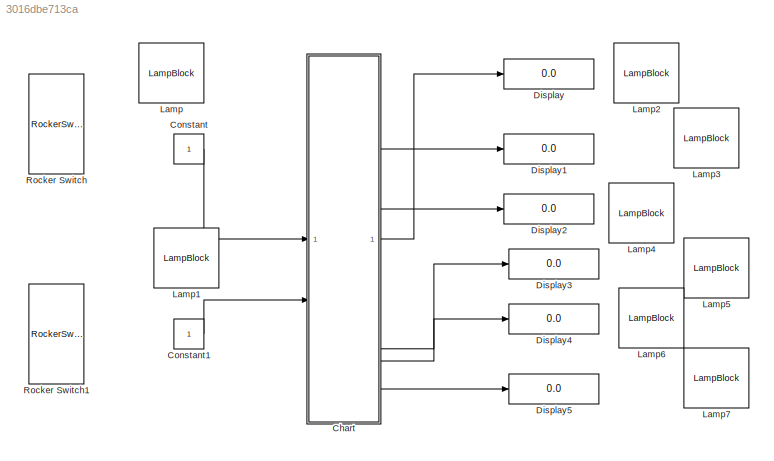
MODEL slx_3016dbe713ca
KIND model
CONFIG AbsTol = auto
CONFIG EnableMultiTasking = off
CONFIG FixedStep = auto
CONFIG MaxStep = auto
CONFIG MinStep = auto
CONFIG RelTol = 1e-3
CONFIG SampleTimeConstraint = Unconstrained
CONFIG SolverName = VariableStepAuto
CONFIG StartTime = 0.0
CONFIG StopTime = 150
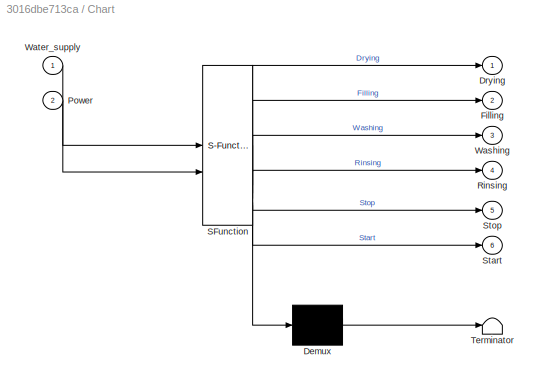
BLOCK [SubSystem] Chart
  ErrorFcn = Stateflow.Translate.translate
  PermitHierarchicalResolution = ExplicitOnly
  SFBlockType = Chart
  TreatAsAtomicUnit = on
BLOCK [Demux] Chart/ Demux 
  Outputs = 1
BLOCK [S-Function] Chart/ SFunction 
  EnableBusSupport = on
  FunctionName = sf_sfun
  PortCounts = [2 7]
  SFcnIsStateOwnerBlock = off
  SFunctionDeploymentMode = off
  Tag = Stateflow S-Function 3
BLOCK [Terminator] Chart/ Terminator 
BLOCK [Outport] Chart/Drying
BLOCK [Outport] Chart/Filling
  Port = 2
BLOCK [Inport] Chart/Power
  Port = 2
BLOCK [Outport] Chart/Rinsing
  Port = 4
BLOCK [Outport] Chart/Start
  Port = 6
BLOCK [Outport] Chart/Stop
  Port = 5
BLOCK [Outport] Chart/Washing
  Port = 3
BLOCK [Inport] Chart/Water_supply
BLOCK [Constant] Constant
BLOCK [Constant] Constant1
BLOCK [Display] Display
  Decimation = 1
BLOCK [Display] Display1
  Decimation = 1
BLOCK [Display] Display2
  Decimation = 1
BLOCK [Display] Display3
  Decimation = 1
BLOCK [Display] Display4
  Decimation = 1
BLOCK [Display] Display5
  Decimation = 1
BLOCK [LampBlock] Lamp
  LabelPosition = Hide
BLOCK [LampBlock] Lamp1
  LabelPosition = Hide
BLOCK [LampBlock] Lamp2
  LabelPosition = Hide
BLOCK [LampBlock] Lamp3
  LabelPosition = Hide
BLOCK [LampBlock] Lamp4
  LabelPosition = Hide
BLOCK [LampBlock] Lamp5
  LabelPosition = Hide
BLOCK [LampBlock] Lamp6
  LabelPosition = Hide
BLOCK [LampBlock] Lamp7
  LabelPosition = Hide
BLOCK [RockerSwitchBlock] Rocker Switch
BLOCK [RockerSwitchBlock] Rocker Switch1
LINE Chart:1 -> Display:1
LINE Chart:2 -> Display1:1
LINE Chart:3 -> Display2:1
LINE Chart:4 -> Display3:1
LINE Chart:5 -> Display4:1
LINE Chart:6 -> Display5:1
LINE Constant1:1 -> Chart:2
LINE Constant:1 -> Chart:1
CHART Chart states=8 transitions=12
  STATE_LABEL 'Power'
  STATE_LABEL 'ON\nentry:Start=1'
  STATE_LABEL 'Water_supply'
  STATE_LABEL 'Filling\nentry:Filling=1'
  STATE_LABEL 'Washing\nentry:Washing=1'
  STATE_LABEL 'Rinsing\nentry:Rinsing=1'
  STATE_LABEL 'Drying\nentry:Drying=1'
  STATE_LABEL 'OFF\nentry:Stop=1'
CHART  states=0 transitions=0
